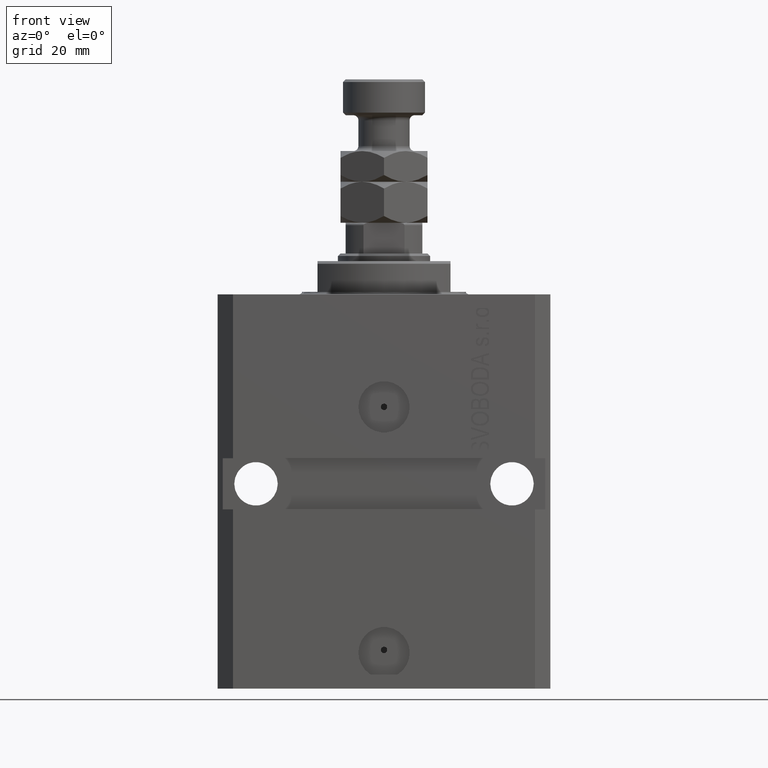
[diagram: clean part render]
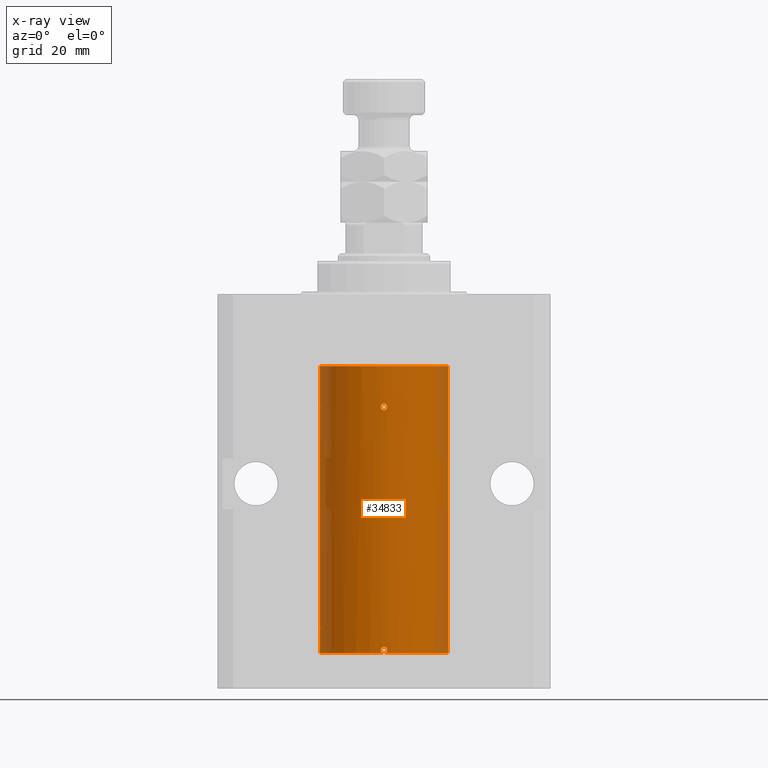
[diagram: x-ray — body ghosted, one internal face saturated and labeled with its STEP entity id]
A machine part, front view, then the same camera in x-ray: the body is ghosted and one INTERNAL B-rep face — a face not visible from any outside direction — is saturated and labeled: STEP entity #34833.
In plain terms, the highlighted cylindrical surface (partial cylindrical patch) has radius 12.5 mm, axis along (0, 0, 1).
Its self-contained STEP definition (entity closure, byte-faithful):
#849 = CARTESIAN_POINT ( 'NONE',  ( 0.6250000000003167466, -12.48436522214884725, -69.63812747540310966 ) ) ;
#1068 = DIRECTION ( 'NONE',  ( -0.000000000000000000, -0.000000000000000000, 1.000000000000000000 ) ) ;
#1086 = CARTESIAN_POINT ( 'NONE',  ( 0.5573988467447082984, -12.48809900631781034, -69.80140147935480854 ) ) ;
#1354 = CARTESIAN_POINT ( 'NONE',  ( -12.50000000000000178, -0.1651708725692960789, -64.37500000000000000 ) ) ;
#1398 = VERTEX_POINT ( 'NONE', #29606 ) ;
#1959 = DIRECTION ( 'NONE',  ( 1.000000000000000000, 0.000000000000000000, 0.000000000000000000 ) ) ;
#2125 = CARTESIAN_POINT ( 'NONE',  ( -12.50000000000000000, -2.089494013101375120E-17, -21.37499999999999645 ) ) ;
#2382 = LINE ( 'NONE', #31734, #37827 ) ;
#2405 = VERTEX_POINT ( 'NONE', #39152 ) ;
#2813 = CARTESIAN_POINT ( 'NONE',  ( -12.50000000000000178, -0.1651708725692886126, -21.37499999999999645 ) ) ;
#2904 = DIRECTION ( 'NONE',  ( 1.000000000000000000, 0.000000000000000000, 0.000000000000000000 ) ) ;
#3438 = CARTESIAN_POINT ( 'NONE',  ( 0.3265259744707224576, -12.49626742995426376, -21.44268445620963348 ) ) ;
#4359 = CARTESIAN_POINT ( 'NONE',  ( 1.470104640658484994E-15, -12.50000000000000000, -70.09999999999999432 ) ) ;
#4848 = CARTESIAN_POINT ( 'NONE',  ( -12.50000000000017941, 3.883381774819353300E-13, -65.62500000000359535 ) ) ;
#5360 = ORIENTED_EDGE ( 'NONE', *, *, #34106, .T. ) ;
#5626 = CARTESIAN_POINT ( 'NONE',  ( -12.48437204107163190, -0.6248637920779505084, -22.16542285240648624 ) ) ;
#6077 = CARTESIAN_POINT ( 'NONE',  ( -12.50000000000017941, 3.883381646606358354E-13, -22.62500000000358824 ) ) ;
#6866 = FACE_BOUND ( 'NONE', #45582, .T. ) ;
#7030 = CARTESIAN_POINT ( 'NONE',  ( -0.6250000000036063375, -12.48436522214868383, -21.99999999999969447 ) ) ;
#7411 = CARTESIAN_POINT ( 'NONE',  ( 0.1636982395582734229, -12.49915742890632053, -70.08372397847031721 ) ) ;
#7744 = CARTESIAN_POINT ( 'NONE',  ( -0.3268155536464903976, -12.49625914831439921, -70.03213681627768494 ) ) ;
#7815 = CIRCLE ( 'NONE', #36815, 12.50000000000000000 ) ;
#8138 = CARTESIAN_POINT ( 'NONE',  ( -12.48435842450557942, -0.6251357828645015546, -64.83560799371397820 ) ) ;
#8899 = ORIENTED_EDGE ( 'NONE', *, *, #42212, .T. ) ;
#8967 = CARTESIAN_POINT ( 'NONE',  ( 0.000000000000000000, 0.000000000000000000, -70.09999999999999432 ) ) ;
#9042 = CARTESIAN_POINT ( 'NONE',  ( -12.50000000000000178, -0.1631389274720982940, -65.62500000000014211 ) ) ;
#9378 = CARTESIAN_POINT ( 'NONE',  ( 0.6087772866342635592, -12.48520622767670574, -69.31152541805840883 ) ) ;
#10177 = B_SPLINE_CURVE_WITH_KNOTS ( 'NONE', 3,
 ( #4359, #18595, #7411, #39529, #32773, #1086, #849, #11365 ),
 .UNSPECIFIED., .F., .F.,
 ( 4, 2, 2, 4 ),
 ( 0.000000000000000000, 0.0002443481056286064194, 0.0004886962112572128389, 0.0009773924225144256777 ),
 .UNSPECIFIED. ) ;
#10296 = CARTESIAN_POINT ( 'NONE',  ( 0.1629224624750973960, -12.50000332393458891, -68.84993352130271660 ) ) ;
#10397 = CARTESIAN_POINT ( 'NONE',  ( 1.470104640658484994E-15, -12.50000000000000000, -70.09999999999999432 ) ) ;
#10442 = CARTESIAN_POINT ( 'NONE',  ( -0.08132084456756884239, -12.50000145133807550, -21.37497097323671014 ) ) ;
#10449 = VERTEX_POINT ( 'NONE', #22208 ) ;
#10674 = CARTESIAN_POINT ( 'NONE',  ( 0.6087318085567836601, -12.48520854404103630, -21.83633981484414122 ) ) ;
#11365 = CARTESIAN_POINT ( 'NONE',  ( 0.6250000000080512264, -12.48436522214846001, -69.47499999999922693 ) ) ;
#11395 = EDGE_CURVE ( 'NONE', #44762, #17315, #26546, .T. ) ;
#12074 = CARTESIAN_POINT ( 'NONE',  ( -12.49627279065598628, -0.3263143231498935593, -65.55740725890372289 ) ) ;
#12880 = ORIENTED_EDGE ( 'NONE', *, *, #26043, .F. ) ;
#12944 = EDGE_CURVE ( 'NONE', #38203, #1398, #25877, .T. ) ;
#12969 = CARTESIAN_POINT ( 'NONE',  ( 0.000000000000000000, 0.000000000000000000, -70.09999999999999432 ) ) ;
#13336 = CARTESIAN_POINT ( 'NONE',  ( -0.3266214369556185715, -12.49626442692393979, -68.91775879961872420 ) ) ;
#13354 = CARTESIAN_POINT ( 'NONE',  ( 0.000000000000000000, 0.000000000000000000, -13.99999999999999822 ) ) ;
#13475 = CARTESIAN_POINT ( 'NONE',  ( 0.6250000000000017764, -12.48436522214886502, -22.00000000000000000 ) ) ;
#13632 = FACE_OUTER_BOUND ( 'NONE', #23928, .T. ) ;
#13797 = CARTESIAN_POINT ( 'NONE',  ( 0.3251408448057629963, -12.49631649875954764, -68.91629557722380639 ) ) ;
#13871 = CYLINDRICAL_SURFACE ( 'NONE', #42216, 12.50000000000000000 ) ;
#14033 = CARTESIAN_POINT ( 'NONE',  ( 0.6249999999998496758, -12.48436522214886857, -69.39345217010018985 ) ) ;
#14188 = ORIENTED_EDGE ( 'NONE', *, *, #37820, .T. ) ;
#14367 = ORIENTED_EDGE ( 'NONE', *, *, #27224, .T. ) ;
#15303 = CARTESIAN_POINT ( 'NONE',  ( -12.50000000000000000, 1.530808498934191521E-15, -13.99999999999999822 ) ) ;
#15589 = CARTESIAN_POINT ( 'NONE',  ( -12.50000000000000000, -1.053276923642966949E-14, -64.37500000000000000 ) ) ;
#15591 = EDGE_CURVE ( 'NONE', #42278, #39373, #45642, .T. ) ;
#16714 = DIRECTION ( 'NONE',  ( 1.000000000000000000, 0.000000000000000000, 0.000000000000000000 ) ) ;
#16844 = CARTESIAN_POINT ( 'NONE',  ( 0.6250000000080512264, -12.48436522214846001, -69.47499999999922693 ) ) ;
#17077 = CARTESIAN_POINT ( 'NONE',  ( 0.3261918319691095580, -12.49627709975190015, -22.55752837903201424 ) ) ;
#17315 = VERTEX_POINT ( 'NONE', #28791 ) ;
#17673 = CARTESIAN_POINT ( 'NONE',  ( -0.6249999999998608891, -12.48436522214887034, -21.83682388509806316 ) ) ;
#17991 = VERTEX_POINT ( 'NONE', #43700 ) ;
#18233 = CARTESIAN_POINT ( 'NONE',  ( -0.6250000000000025535, -12.48436522214886324, -69.47499999999999432 ) ) ;
#18595 = CARTESIAN_POINT ( 'NONE',  ( 0.08262306818364176242, -12.50000000000000000, -70.09999999999999432 ) ) ;
#19086 = CARTESIAN_POINT ( 'NONE',  ( -12.48811925907523879, -0.5569488909189596049, -65.32709604503179435 ) ) ;
#19777 = CARTESIAN_POINT ( 'NONE',  ( -12.48437204107163190, -0.6248637920779611665, -65.16542285240649335 ) ) ;
#19866 = CARTESIAN_POINT ( 'NONE',  ( -12.48435842450557942, -0.6251357828644855674, -21.83560799371398886 ) ) ;
#20154 = CARTESIAN_POINT ( 'NONE',  ( -0.6250000000036063375, -12.48436522214868383, -21.99999999999969447 ) ) ;
#20307 = LINE ( 'NONE', #41696, #31701 ) ;
#20403 = EDGE_CURVE ( 'NONE', #2405, #39373, #7815, .T. ) ;
#20716 = CARTESIAN_POINT ( 'NONE',  ( 0.5459720203952235229, -12.48811039973180748, -21.68495456851491454 ) ) ;
#21023 = CARTESIAN_POINT ( 'NONE',  ( -0.6250000000001363354, -12.48436522214885258, -22.16313892819009013 ) ) ;
#21400 = CARTESIAN_POINT ( 'NONE',  ( -0.5585674314229008841, -12.48806005752685344, -21.67463197640445571 ) ) ;
#22195 = CARTESIAN_POINT ( 'NONE',  ( 1.470104640658484994E-15, -12.50000000000000000, -70.09999999999999432 ) ) ;
#22208 = CARTESIAN_POINT ( 'NONE',  ( 0.6250000000080512264, -12.48436522214846001, -69.47499999999922693 ) ) ;
#22240 = VECTOR ( 'NONE', #22603, 1000.000000000000000 ) ;
#22378 = CARTESIAN_POINT ( 'NONE',  ( -12.50000000000000000, 1.530808498934191521E-15, -70.09999999999999432 ) ) ;
#22603 = DIRECTION ( 'NONE',  ( -0.000000000000000000, -0.000000000000000000, 1.000000000000000000 ) ) ;
#23596 = VERTEX_POINT ( 'NONE', #41537 ) ;
#23928 = EDGE_LOOP ( 'NONE', ( #41423, #31488, #8899, #14188, #42497, #5360, #14367, #12880, #34723, #42920, #44284, #25155 ) ) ;
#24263 = CARTESIAN_POINT ( 'NONE',  ( -12.50000000000000000, -1.053276923642966949E-14, -64.37500000000000000 ) ) ;
#24291 = CARTESIAN_POINT ( 'NONE',  ( 0.5570667809667051440, -12.48811511264091934, -22.32697951956172844 ) ) ;
#24489 = LINE ( 'NONE', #22378, #22240 ) ;
#24658 = CARTESIAN_POINT ( 'NONE',  ( -0.6250000000036063375, -12.48436522214868383, -21.99999999999969447 ) ) ;
#24887 = CARTESIAN_POINT ( 'NONE',  ( 0.4995290477189069378, -12.49014813577965732, -21.61562461405073421 ) ) ;
#24935 = DIRECTION ( 'NONE',  ( -0.000000000000000000, -0.000000000000000000, 1.000000000000000000 ) ) ;
#25155 = ORIENTED_EDGE ( 'NONE', *, *, #15591, .T. ) ;
#25877 = B_SPLINE_CURVE_WITH_KNOTS ( 'NONE', 3,
 ( #7030, #21023, #35208, #41961, #45687, #31722, #17077, #24291, #31263, #38464 ),
 .UNSPECIFIED., .F., .F.,
 ( 4, 2, 2, 2, 4 ),
 ( 0.001954339857564081195, 0.002442813476812580147, 0.002931287096061078665, 0.003419760715309577617, 0.003908234334558076568 ),
 .UNSPECIFIED. ) ;
#26043 = EDGE_CURVE ( 'NONE', #23596, #29004, #33210, .T. ) ;
#26546 = B_SPLINE_CURVE_WITH_KNOTS ( 'NONE', 3,
 ( #6077, #31009, #27752, #30781, #5626, #19866, #44974, #45662, #2813, #2125 ),
 .UNSPECIFIED., .F., .F.,
 ( 4, 2, 2, 2, 4 ),
 ( 0.001954339881912776130, 0.002442813509249222061, 0.002931287136585667558, 0.003419760763922113488, 0.003908234391258559419 ),
 .UNSPECIFIED. ) ;
#26746 = AXIS2_PLACEMENT_3D ( 'NONE', #12969, #34385, #16714 ) ;
#26894 = DIRECTION ( 'NONE',  ( 0.000000000000000000, 0.000000000000000000, 1.000000000000000000 ) ) ;
#27207 = VECTOR ( 'NONE', #1068, 1000.000000000000000 ) ;
#27224 = EDGE_CURVE ( 'NONE', #46069, #29004, #44319, .T. ) ;
#27523 = EDGE_CURVE ( 'NONE', #2405, #17991, #20307, .T. ) ;
#27752 = CARTESIAN_POINT ( 'NONE',  ( -12.49627279065598628, -0.3263143231498885077, -22.55740725890368736 ) ) ;
#27848 = DIRECTION ( 'NONE',  ( -0.000000000000000000, -0.000000000000000000, 1.000000000000000000 ) ) ;
#28154 = CARTESIAN_POINT ( 'NONE',  ( 0.6250000000000018874, -12.48436522214886324, -21.91739573630514926 ) ) ;
#28791 = CARTESIAN_POINT ( 'NONE',  ( -12.50000000000000000, -2.089494013101375120E-17, -21.37499999999999645 ) ) ;
#28814 = CARTESIAN_POINT ( 'NONE',  ( 12.50000000000000000, 0.000000000000000000, -13.99999999999999822 ) ) ;
#29004 = VERTEX_POINT ( 'NONE', #28814 ) ;
#29606 = CARTESIAN_POINT ( 'NONE',  ( 0.6250000000000017764, -12.48436522214886502, -22.00000000000000000 ) ) ;
#30781 = CARTESIAN_POINT ( 'NONE',  ( -12.48811925907523879, -0.5569488909189486137, -22.32709604503179079 ) ) ;
#30986 = ORIENTED_EDGE ( 'NONE', *, *, #32935, .T. ) ;
#31009 = CARTESIAN_POINT ( 'NONE',  ( -12.50000000000000178, -0.1631389274720966009, -22.62500000000016698 ) ) ;
#31029 = CARTESIAN_POINT ( 'NONE',  ( -0.1634321124498647193, -12.49999667087055499, -68.85006658259450774 ) ) ;
#31263 = CARTESIAN_POINT ( 'NONE',  ( 0.6250000000000018874, -12.48436522214886502, -22.16517087750612092 ) ) ;
#31482 = CARTESIAN_POINT ( 'NONE',  ( -0.6250000000000027756, -12.48436522214886502, -69.31002761350272579 ) ) ;
#31488 = ORIENTED_EDGE ( 'NONE', *, *, #27523, .T. ) ;
#31701 = VECTOR ( 'NONE', #24935, 1000.000000000000000 ) ;
#31719 = CARTESIAN_POINT ( 'NONE',  ( -0.6250000000000025535, -12.48436522214886324, -69.47499999999999432 ) ) ;
#31722 = CARTESIAN_POINT ( 'NONE',  ( 0.1643920345763580093, -12.50000678895248107, -22.62513577909574636 ) ) ;
#31734 = CARTESIAN_POINT ( 'NONE',  ( -12.50000000000000000, 1.530808498934191521E-15, -70.09999999999999432 ) ) ;
#31790 = CARTESIAN_POINT ( 'NONE',  ( 0.000000000000000000, 0.000000000000000000, -70.09999999999999432 ) ) ;
#32214 = EDGE_CURVE ( 'NONE', #39373, #10449, #10177, .T. ) ;
#32422 = CARTESIAN_POINT ( 'NONE',  ( -0.6250000000000026645, -12.48436522214885969, -69.63984350486184383 ) ) ;
#32773 = CARTESIAN_POINT ( 'NONE',  ( 0.3844519291904487934, -12.49421963472024188, -69.97447303647051342 ) ) ;
#32935 = EDGE_CURVE ( 'NONE', #1398, #38203, #41759, .T. ) ;
#33210 = LINE ( 'NONE', #40205, #27207 ) ;
#33261 = CARTESIAN_POINT ( 'NONE',  ( -12.49625500642808262, -0.3269795983093126690, -64.44293326880233508 ) ) ;
#33942 = CARTESIAN_POINT ( 'NONE',  ( -12.48809300548636081, -0.5575284115737590973, -64.67380822970859811 ) ) ;
#34106 = EDGE_CURVE ( 'NONE', #17315, #46069, #2382, .T. ) ;
#34115 = ORIENTED_EDGE ( 'NONE', *, *, #12944, .T. ) ;
#34385 = DIRECTION ( 'NONE',  ( 0.000000000000000000, 0.000000000000000000, 1.000000000000000000 ) ) ;
#34723 = ORIENTED_EDGE ( 'NONE', *, *, #40323, .F. ) ;
#34770 = DIRECTION ( 'NONE',  ( 1.000000000000000000, 0.000000000000000000, 0.000000000000000000 ) ) ;
#34833 = ADVANCED_FACE ( 'NONE', ( #6866, #13632 ), #13871, .F. ) ;
#35205 = CARTESIAN_POINT ( 'NONE',  ( 0.5002336959535146343, -12.49012317397092886, -69.09133113277157179 ) ) ;
#35208 = CARTESIAN_POINT ( 'NONE',  ( -0.5574072998201419216, -12.48809731436987747, -22.32631425440896322 ) ) ;
#36141 = CARTESIAN_POINT ( 'NONE',  ( -0.1650848372272839815, -12.50000000000000178, -70.10000000000000853 ) ) ;
#36815 = AXIS2_PLACEMENT_3D ( 'NONE', #8967, #26894, #1959 ) ;
#37800 = VERTEX_POINT ( 'NONE', #24263 ) ;
#37820 = EDGE_CURVE ( 'NONE', #37800, #44762, #24489, .T. ) ;
#37827 = VECTOR ( 'NONE', #38476, 1000.000000000000000 ) ;
#38203 = VERTEX_POINT ( 'NONE', #20154 ) ;
#38464 = CARTESIAN_POINT ( 'NONE',  ( 0.6250000000000017764, -12.48436522214886502, -22.00000000000000000 ) ) ;
#38476 = DIRECTION ( 'NONE',  ( -0.000000000000000000, -0.000000000000000000, 1.000000000000000000 ) ) ;
#38611 = CARTESIAN_POINT ( 'NONE',  ( -0.3834811789276724170, -12.49425278195415423, -21.49962372461870785 ) ) ;
#39071 = CARTESIAN_POINT ( 'NONE',  ( -0.3146137485037712733, -12.49626935132541306, -21.45378489701016633 ) ) ;
#39152 = CARTESIAN_POINT ( 'NONE',  ( -12.50000000000000000, 1.530808498934191521E-15, -70.09999999999999432 ) ) ;
#39309 = CARTESIAN_POINT ( 'NONE',  ( -12.50000000000017941, 3.883381646606358354E-13, -22.62500000000358824 ) ) ;
#39373 = VERTEX_POINT ( 'NONE', #10397 ) ;
#39399 = CIRCLE ( 'NONE', #26746, 12.50000000000000000 ) ;
#39511 = CARTESIAN_POINT ( 'NONE',  ( -0.6250000000000025535, -12.48436522214886324, -69.47499999999999432 ) ) ;
#39529 = CARTESIAN_POINT ( 'NONE',  ( 0.3151108292487665996, -12.49625698805480845, -70.02093695688176922 ) ) ;
#39639 = CARTESIAN_POINT ( 'NONE',  ( -0.5573321180046024725, -12.48810161786719242, -69.80148238604530775 ) ) ;
#40205 = CARTESIAN_POINT ( 'NONE',  ( 12.50000000000000000, 0.000000000000000000, -70.09999999999999432 ) ) ;
#40323 = EDGE_CURVE ( 'NONE', #39373, #23596, #39399, .T. ) ;
#41276 = CARTESIAN_POINT ( 'NONE',  ( -0.5571821530518563659, -12.48810851326189031, -69.14827784464195304 ) ) ;
#41282 = B_SPLINE_CURVE_WITH_KNOTS ( 'NONE', 3,
 ( #16844, #14033, #9378, #41505, #35205, #13797, #10296, #31029, #13336, #41276, #31482, #31719 ),
 .UNSPECIFIED., .F., .F.,
 ( 4, 2, 2, 2, 2, 4 ),
 ( 0.0009773924225144256777, 0.001221692871650375710, 0.001465993320786325958, 0.001954594219058255079, 0.002443195117330184199, 0.002931796015602113753 ),
 .UNSPECIFIED. ) ;
#41423 = ORIENTED_EDGE ( 'NONE', *, *, #20403, .F. ) ;
#41505 = CARTESIAN_POINT ( 'NONE',  ( 0.5460961315382516501, -12.48810487413754444, -69.16017824283937898 ) ) ;
#41537 = CARTESIAN_POINT ( 'NONE',  ( 12.50000000000000000, 0.000000000000000000, -70.09999999999999432 ) ) ;
#41696 = CARTESIAN_POINT ( 'NONE',  ( -12.50000000000000000, 1.530808498934191521E-15, -70.09999999999999432 ) ) ;
#41749 = DIRECTION ( 'NONE',  ( 0.000000000000000000, 0.000000000000000000, 1.000000000000000000 ) ) ;
#41759 = B_SPLINE_CURVE_WITH_KNOTS ( 'NONE', 3,
 ( #13475, #28154, #10674, #20716, #24887, #3438, #42335, #10442, #41876, #39071, #38611, #21400, #17673, #24658 ),
 .UNSPECIFIED., .F., .F.,
 ( 4, 2, 2, 2, 2, 2, 4 ),
 ( 0.000000000000000000, 0.0002442924821955120467, 0.0004885849643910240934, 0.0009771699287820408142, 0.001221462410977549283, 0.001465754893173057318, 0.001954339857564081195 ),
 .UNSPECIFIED. ) ;
#41876 = CARTESIAN_POINT ( 'NONE',  ( -0.1632543323367347532, -12.49916307336598287, -21.39116441262433099 ) ) ;
#41961 = CARTESIAN_POINT ( 'NONE',  ( -0.3270961104548176790, -12.49625086038168931, -22.55694885317108600 ) ) ;
#42212 = EDGE_CURVE ( 'NONE', #17991, #37800, #44496, .T. ) ;
#42216 = AXIS2_PLACEMENT_3D ( 'NONE', #31790, #27848, #2904 ) ;
#42278 = VERTEX_POINT ( 'NONE', #39511 ) ;
#42335 = CARTESIAN_POINT ( 'NONE',  ( 0.1633100384313375397, -12.49999709136798032, -21.37505817264410979 ) ) ;
#42497 = ORIENTED_EDGE ( 'NONE', *, *, #11395, .T. ) ;
#42821 = AXIS2_PLACEMENT_3D ( 'NONE', #13354, #41749, #34770 ) ;
#42920 = ORIENTED_EDGE ( 'NONE', *, *, #32214, .T. ) ;
#43700 = CARTESIAN_POINT ( 'NONE',  ( -12.50000000000017941, 3.883381774819353300E-13, -65.62500000000359535 ) ) ;
#44284 = ORIENTED_EDGE ( 'NONE', *, *, #45319, .T. ) ;
#44319 = CIRCLE ( 'NONE', #42821, 12.50000000000000000 ) ;
#44496 = B_SPLINE_CURVE_WITH_KNOTS ( 'NONE', 3,
 ( #4848, #9042, #12074, #19086, #19777, #8138, #33942, #33261, #1354, #15589 ),
 .UNSPECIFIED., .F., .F.,
 ( 4, 2, 2, 2, 4 ),
 ( 0.001954339881912786538, 0.002442813509249238107, 0.002931287136585690109, 0.003419760763922141678, 0.003908234391258593246 ),
 .UNSPECIFIED. ) ;
#44762 = VERTEX_POINT ( 'NONE', #39309 ) ;
#44974 = CARTESIAN_POINT ( 'NONE',  ( -12.48809300548636081, -0.5575284115737433321, -21.67380822970859811 ) ) ;
#45319 = EDGE_CURVE ( 'NONE', #10449, #42278, #41282, .T. ) ;
#45582 = EDGE_LOOP ( 'NONE', ( #30986, #34115 ) ) ;
#45642 = B_SPLINE_CURVE_WITH_KNOTS ( 'NONE', 3,
 ( #18233, #32422, #39639, #7744, #36141, #22195 ),
 .UNSPECIFIED., .F., .F.,
 ( 4, 2, 4 ),
 ( 0.002931796015602113753, 0.003420015203430352198, 0.003908234391258590644 ),
 .UNSPECIFIED. ) ;
#45662 = CARTESIAN_POINT ( 'NONE',  ( -12.49625500642808262, -0.3269795983092943503, -21.44293326880232087 ) ) ;
#45687 = CARTESIAN_POINT ( 'NONE',  ( -0.1654228519529012675, -12.49999318979582874, -22.62486379587040020 ) ) ;
#46069 = VERTEX_POINT ( 'NONE', #15303 ) ;